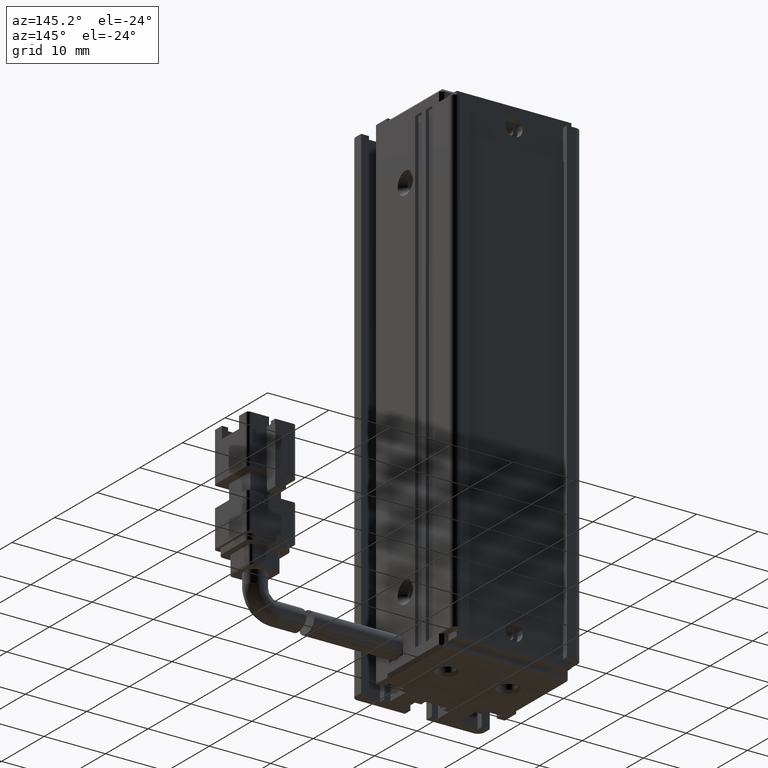
[diagram: clean part render]
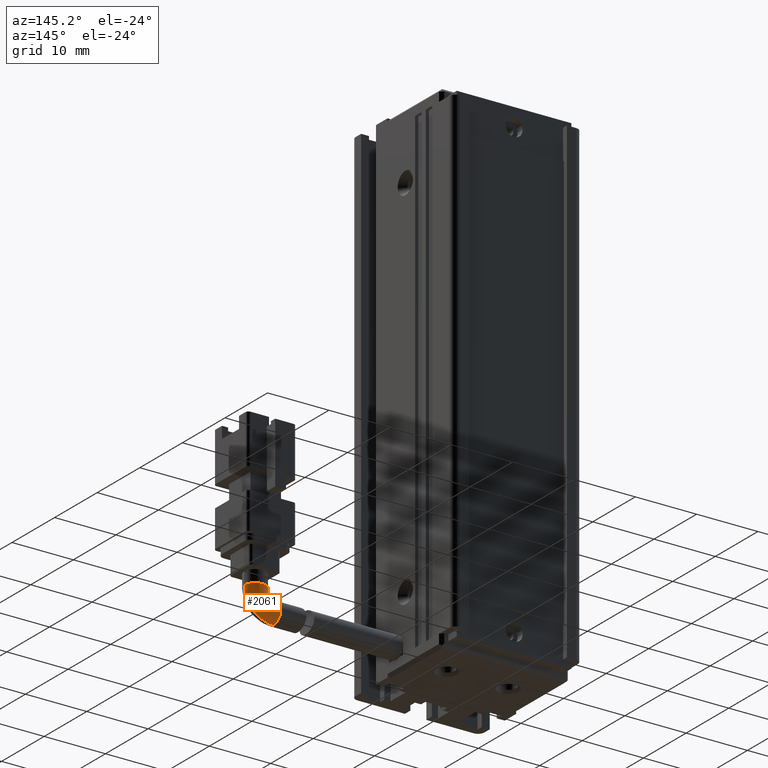
[diagram: same view with one face highlighted and labeled with its STEP entity id]
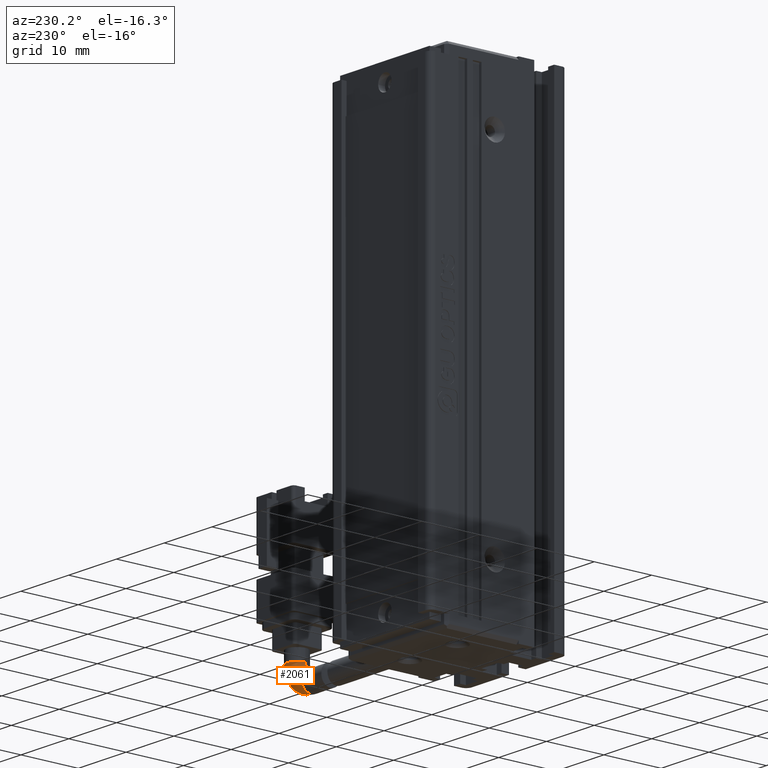
[diagram: same view with one face highlighted and labeled with its STEP entity id]
A machine part, auxiliary view. The second image highlights one B-rep face of the part: STEP entity #2061.
A second angle (auxiliary view) of the same face is appended — the face is thin or edge-on in the first view.
In plain terms, the highlighted face is a freeform B-spline surface patch.
Its self-contained STEP definition (entity closure, byte-faithful):
#227 = EDGE_CURVE ( 'NONE', #26278, #14107, #9606, .T. ) ;
#354 = CIRCLE ( 'NONE', #19577, 1.750000000000001600 ) ;
#757 = VERTEX_POINT ( 'NONE', #14174 ) ;
#1298 = EDGE_CURVE ( 'NONE', #14107, #757, #16327, .T. ) ;
#2061 = ADVANCED_FACE ( 'NONE', ( #18446 ), #3911, .T. ) ;
#2062 = CARTESIAN_POINT ( 'NONE',  ( 71.42537974683536100, 21.49073232304858300, -149.4499999999999900 ) ) ;
#2076 = CARTESIAN_POINT ( 'NONE',  ( 71.42537974683536100, 21.49073232304858300, -152.4499999999999900 ) ) ;
#2302 = DIRECTION ( 'NONE',  ( -3.304235192336770400E-015, 1.000000000000000000, -5.551115123125780200E-017 ) ) ;
#2381 = DIRECTION ( 'NONE',  ( 0.0000000000000000000, 0.0000000000000000000, -1.000000000000000000 ) ) ;
#3241 = CARTESIAN_POINT ( 'NONE',  ( 72.67537974683536100, 21.49073232304858600, -149.4499999999999900 ) ) ;
#3911 =( BOUNDED_SURFACE ( )  B_SPLINE_SURFACE ( 3, 3, ( 
 ( #29116, #10586, #10875, #29012 ),
 ( #6149, #24581, #22363, #17797 ),
 ( #3925, #24288, #8431, #15191 ),
 ( #10487, #10781, #19850, #12887 ) ),
 .UNSPECIFIED., .F., .F., .F. ) 
 B_SPLINE_SURFACE_WITH_KNOTS ( ( 4, 4 ),
 ( 4, 4 ),
 ( 0.0000000000000000000, 1.000000000000000000 ),
 ( 0.0000000000000000000, 1.000000000000000000 ),
 .UNSPECIFIED. ) 
 GEOMETRIC_REPRESENTATION_ITEM ( )  RATIONAL_B_SPLINE_SURFACE ( (
 ( 1.000000000000000000, 0.8047378541243649400, 0.8047378541243649400, 1.000000000000000000),
 ( 0.3333333333333311500, 0.2682459513747865700, 0.2682459513747865700, 0.3333333333333311500),
 ( 0.3333333333333311500, 0.2682459513747865700, 0.2682459513747865700, 0.3333333333333311500),
 ( 1.000000000000000000, 0.8047378541243649400, 0.8047378541243649400, 1.000000000000000000) ) ) 
 REPRESENTATION_ITEM ( '' )  SURFACE ( )  );
#3925 = CARTESIAN_POINT ( 'NONE',  ( 76.17537974683533300, 24.99073232304862200, -149.4500000000000200 ) ) ;
#4621 = DIRECTION ( 'NONE',  ( 0.0000000000000000000, 0.0000000000000000000, -1.000000000000000000 ) ) ;
#6149 = CARTESIAN_POINT ( 'NONE',  ( 72.67537974683531800, 24.99073232304860100, -149.4500000000000200 ) ) ;
#6516 = ORIENTED_EDGE ( 'NONE', *, *, #1298, .F. ) ;
#6681 = DIRECTION ( 'NONE',  ( 0.0000000000000000000, 0.0000000000000000000, -1.000000000000000000 ) ) ;
#7721 = EDGE_CURVE ( 'NONE', #29073, #757, #354, .T. ) ;
#8431 = CARTESIAN_POINT ( 'NONE',  ( 74.20786532556312000, 24.99073232304861500, -154.2000000000000200 ) ) ;
#8505 = CARTESIAN_POINT ( 'NONE',  ( 76.17537974683536100, 21.49073232304860100, -149.4499999999999900 ) ) ;
#8895 = CARTESIAN_POINT ( 'NONE',  ( 71.42537974683536100, 21.49073232304858300, -149.4499999999999900 ) ) ;
#9543 = CARTESIAN_POINT ( 'NONE',  ( 74.42537974683536100, 21.49073232304859400, -149.4499999999999900 ) ) ;
#9606 = CIRCLE ( 'NONE', #27364, 1.750000000000001600 ) ;
#10487 = CARTESIAN_POINT ( 'NONE',  ( 76.17537974683536100, 21.49073232304860400, -149.4500000000000200 ) ) ;
#10586 = CARTESIAN_POINT ( 'NONE',  ( 72.67537974683533300, 21.49073232304858300, -150.1822330470336600 ) ) ;
#10781 = CARTESIAN_POINT ( 'NONE',  ( 76.17537974683534700, 21.49073232304859700, -152.2324855787278200 ) ) ;
#10875 = CARTESIAN_POINT ( 'NONE',  ( 72.15761279386895000, 21.49073232304858300, -150.7000000000000200 ) ) ;
#11669 = DIRECTION ( 'NONE',  ( 2.143131898507846900E-016, 5.551115123125850500E-017, 1.000000000000000000 ) ) ;
#11773 = ORIENTED_EDGE ( 'NONE', *, *, #7721, .T. ) ;
#12275 = EDGE_LOOP ( 'NONE', ( #6516, #19102, #29339, #11773 ) ) ;
#12887 = CARTESIAN_POINT ( 'NONE',  ( 71.42537974683533300, 21.49073232304858600, -154.2000000000000200 ) ) ;
#14107 = VERTEX_POINT ( 'NONE', #3241 ) ;
#14174 = CARTESIAN_POINT ( 'NONE',  ( 71.42537974683536100, 21.49073232304857600, -150.6999999999999900 ) ) ;
#15191 = CARTESIAN_POINT ( 'NONE',  ( 71.42537974683530400, 24.99073232304860800, -154.1999999999999900 ) ) ;
#16327 = CIRCLE ( 'NONE', #20828, 1.250000000000001100 ) ;
#17797 = CARTESIAN_POINT ( 'NONE',  ( 71.42537974683530400, 24.99073232304860100, -150.6999999999999300 ) ) ;
#18273 = DIRECTION ( 'NONE',  ( 1.000000000000000000, 3.304235192336770400E-015, 8.579261317967046800E-031 ) ) ;
#18446 = FACE_OUTER_BOUND ( 'NONE', #12275, .T. ) ;
#19102 = ORIENTED_EDGE ( 'NONE', *, *, #227, .F. ) ;
#19577 = AXIS2_PLACEMENT_3D ( 'NONE', #2076, #18273, #2381 ) ;
#19850 = CARTESIAN_POINT ( 'NONE',  ( 74.20786532556312000, 21.49073232304859700, -154.2000000000000200 ) ) ;
#20438 = CIRCLE ( 'NONE', #23206, 4.750000000000004400 ) ;
#20828 = AXIS2_PLACEMENT_3D ( 'NONE', #8895, #2302, #4621 ) ;
#22318 = CARTESIAN_POINT ( 'NONE',  ( 71.42537974683536100, 21.49073232304857600, -154.2000000000000200 ) ) ;
#22363 = CARTESIAN_POINT ( 'NONE',  ( 72.15761279386889300, 24.99073232304860800, -150.6999999999999600 ) ) ;
#23178 = DIRECTION ( 'NONE',  ( 1.000000000000000000, 3.965082230804126700E-015, 0.0000000000000000000 ) ) ;
#23206 = AXIS2_PLACEMENT_3D ( 'NONE', #2062, #27646, #6681 ) ;
#23317 = EDGE_CURVE ( 'NONE', #26278, #29073, #20438, .T. ) ;
#24288 = CARTESIAN_POINT ( 'NONE',  ( 76.17537974683533300, 24.99073232304862200, -152.2324855787278200 ) ) ;
#24581 = CARTESIAN_POINT ( 'NONE',  ( 72.67537974683530400, 24.99073232304860800, -150.1822330470336300 ) ) ;
#26278 = VERTEX_POINT ( 'NONE', #8505 ) ;
#27364 = AXIS2_PLACEMENT_3D ( 'NONE', #9543, #11669, #23178 ) ;
#27646 = DIRECTION ( 'NONE',  ( -3.304235192336770400E-015, 1.000000000000000000, -5.551115123125780200E-017 ) ) ;
#29012 = CARTESIAN_POINT ( 'NONE',  ( 71.42537974683533300, 21.49073232304857600, -150.6999999999999900 ) ) ;
#29073 = VERTEX_POINT ( 'NONE', #22318 ) ;
#29116 = CARTESIAN_POINT ( 'NONE',  ( 72.67537974683536100, 21.49073232304857900, -149.4500000000000200 ) ) ;
#29339 = ORIENTED_EDGE ( 'NONE', *, *, #23317, .T. ) ;